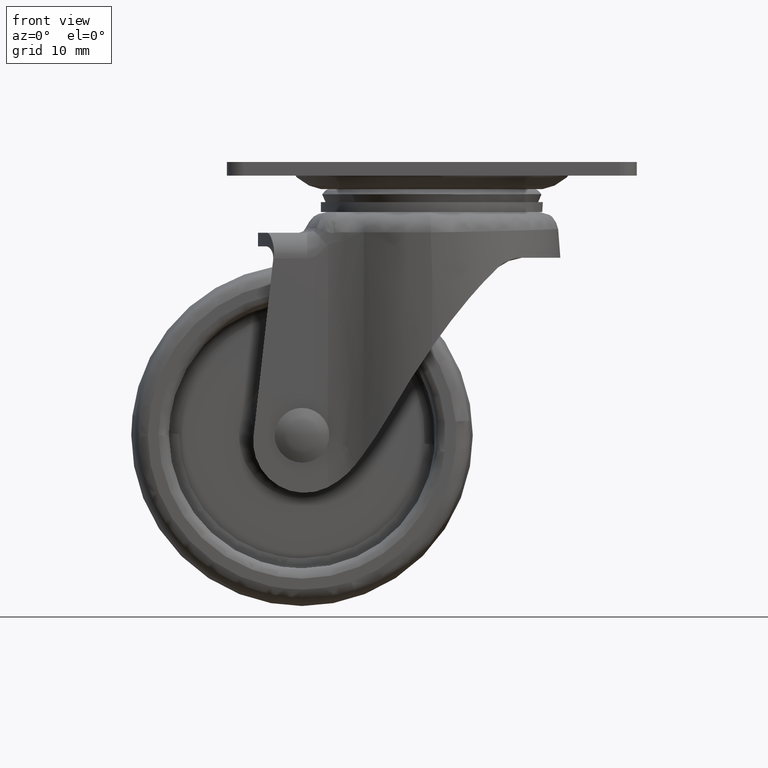
[diagram: clean part render]
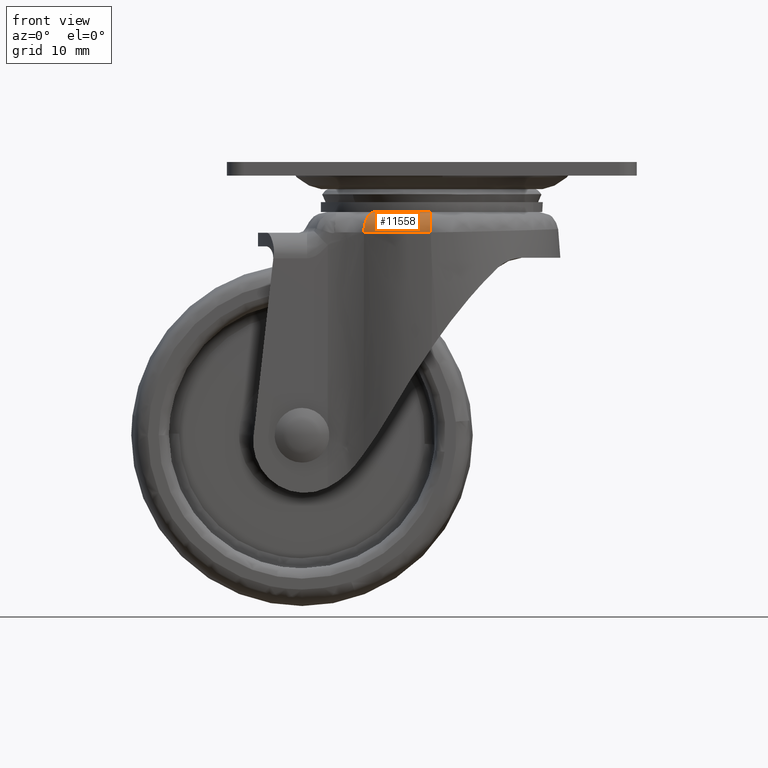
[diagram: same view with one face highlighted and labeled with its STEP entity id]
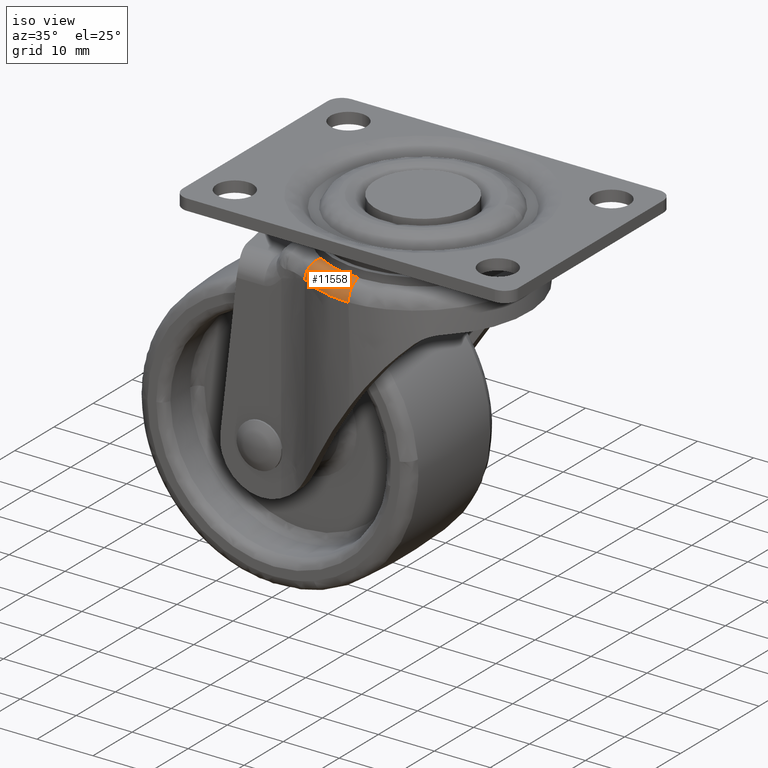
[diagram: same view with one face highlighted and labeled with its STEP entity id]
A machine part, front view. The second image highlights one B-rep face of the part: STEP entity #11558.
A second angle (iso view) of the same face is appended — the face is thin or edge-on in the first view.
In plain terms, the highlighted face is a freeform B-spline surface patch.
Its self-contained STEP definition (entity closure, byte-faithful):
#9485=CARTESIAN_POINT('',(-8.369213533288811,-13.460270502599659,-7.312300000000000));
#9486=VERTEX_POINT('',#9485);
#9500=CARTESIAN_POINT('',(-0.211368804639045,-15.848757446875849,-7.312300000000000));
#9501=VERTEX_POINT('',#9500);
#9502=CARTESIAN_POINT('',(-8.369213533288811,-13.460270502599659,-7.312300000000000));
#9503=CARTESIAN_POINT('',(-4.622674445435258,-15.789844113339997,-7.312300000000000));
#9504=CARTESIAN_POINT('',(-0.211368804639045,-15.848757446875849,-7.312300000000000));
#9512=(BOUNDED_CURVE()B_SPLINE_CURVE(2,(#9502,#9503,#9504),.UNSPECIFIED.,.F.,.U.)CURVE()GEOMETRIC_REPRESENTATION_ITEM()QUASI_UNIFORM_CURVE()RATIONAL_B_SPLINE_CURVE((1.0,0.963377945094410,1.0))REPRESENTATION_ITEM(''));
#9513=EDGE_CURVE('',#9486,#9501,#9512,.T.);
#11463=CARTESIAN_POINT('',(-9.953290479652640,-16.007955771230499,-10.312300000000000));
#11464=VERTEX_POINT('',#11463);
#11465=CARTESIAN_POINT('',(-9.953290479652637,-16.007955771230510,-10.312300000000000));
#11466=CARTESIAN_POINT('',(-9.953290479652637,-16.007955771230503,-7.312300000000000));
#11467=CARTESIAN_POINT('',(-8.369213533288811,-13.460270502599659,-7.312300000000000));
#11475=(BOUNDED_CURVE()B_SPLINE_CURVE(2,(#11465,#11466,#11467),.UNSPECIFIED.,.F.,.U.)CURVE()GEOMETRIC_REPRESENTATION_ITEM()QUASI_UNIFORM_CURVE()RATIONAL_B_SPLINE_CURVE((1.0,0.707106781186548,1.0))REPRESENTATION_ITEM(''));
#11476=EDGE_CURVE('',#11464,#9486,#11475,.T.);
#11509=CARTESIAN_POINT('',(-10.376411036276826,-15.728240278587132,-10.521472444295743));
#11510=CARTESIAN_POINT('',(-5.507472607195649,-18.940428767129223,-10.521472444295739));
#11511=CARTESIAN_POINT('',(0.324731981307811,-18.839900413193632,-10.521472444295741));
#11512=CARTESIAN_POINT('',(-10.508861203603439,-15.929004247431148,-7.080293131896187));
#11513=CARTESIAN_POINT('',(-5.577772948110320,-19.182194888675149,-7.080293131896187));
#11514=CARTESIAN_POINT('',(0.328877129498004,-19.080383335159681,-7.080293131896186));
#11515=CARTESIAN_POINT('',(-8.613803640330195,-13.056533149282791,-7.319522938318220));
#11516=CARTESIAN_POINT('',(-4.571936598938209,-15.723077196139235,-7.319522938318221));
#11517=CARTESIAN_POINT('',(0.269569583216519,-15.639625280199866,-7.319522938318218));
#11525=(BOUNDED_SURFACE()B_SPLINE_SURFACE(2,2,((#11509,#11512,#11515),(#11510,#11513,#11516),(#11511,#11514,#11517)),.UNSPECIFIED.,.F.,.F.,.U.)B_SPLINE_SURFACE_WITH_KNOTS((3,3),(3,3),(0.0,11.399286200392019),(0.0,5.467110668570027),.UNSPECIFIED.)GEOMETRIC_REPRESENTATION_ITEM()RATIONAL_B_SPLINE_SURFACE(((0.863274144442037,0.568077419532900,0.868082582462250),(0.824634716366299,0.542650749760832,0.829227932725775),(0.863213603317525,0.568037580455117,0.868021704123602)))REPRESENTATION_ITEM('')SURFACE());
#11526=CARTESIAN_POINT('',(-0.182438015682148,-18.849117192179499,-10.311116450192721));
#11527=VERTEX_POINT('',#11526);
#11528=CARTESIAN_POINT('',(-0.182438015682148,-18.849117192179499,-10.311116450192721));
#11529=CARTESIAN_POINT('',(-0.182441308971112,-18.848696138851981,-9.957782691820489));
#11530=CARTESIAN_POINT('',(-0.183059411722997,-18.784522454769771,-9.576882963991857));
#11531=CARTESIAN_POINT('',(-0.185876485251217,-18.492268347245972,-8.838659459573037));
#11532=CARTESIAN_POINT('',(-0.188084121270443,-18.263290017298381,-8.483767742940936));
#11533=CARTESIAN_POINT('',(-0.193733508154494,-17.677402273883040,-7.897925979719793));
#11534=CARTESIAN_POINT('',(-0.197156146682034,-17.322474967076118,-7.668960409096036));
#11535=CARTESIAN_POINT('',(-0.204279840289085,-16.583790078671061,-7.376626610187225));
#11536=CARTESIAN_POINT('',(-0.207958437365262,-16.202360840253942,-7.312320205914102));
#11537=CARTESIAN_POINT('',(-0.211368804639045,-15.848757446875849,-7.312300000000000));
#11538=B_SPLINE_CURVE_WITH_KNOTS('',3,(#11528,#11529,#11530,#11531,#11532,#11533,#11534,#11535,#11536,#11537),.UNSPECIFIED.,.F.,.U.,(4,2,2,2,4),(0.000039283010345,0.249760458865238,0.499760458865238,0.749760458865237,0.999721175854893),.UNSPECIFIED.);
#11539=EDGE_CURVE('',#11527,#9501,#11538,.T.);
#11540=ORIENTED_EDGE('',*,*,#11539,.T.);
#11541=ORIENTED_EDGE('',*,*,#9513,.F.);
#11542=ORIENTED_EDGE('',*,*,#11476,.F.);
#11543=CARTESIAN_POINT('',(-0.182438015682148,-18.849117192179499,-10.311116450192721));
#11544=CARTESIAN_POINT('',(-5.466069930335563,-18.797979606962450,-10.311708225096361));
#11545=CARTESIAN_POINT('',(-9.953290479652640,-16.007955771230499,-10.312300000000000));
#11553=(BOUNDED_CURVE()B_SPLINE_CURVE(2,(#11543,#11544,#11545),.UNSPECIFIED.,.F.,.U.)CURVE()GEOMETRIC_REPRESENTATION_ITEM()QUASI_UNIFORM_CURVE()RATIONAL_B_SPLINE_CURVE((1.0,0.962886001294777,1.0))REPRESENTATION_ITEM(''));
#11554=EDGE_CURVE('',#11527,#11464,#11553,.T.);
#11555=ORIENTED_EDGE('',*,*,#11554,.F.);
#11556=EDGE_LOOP('',(#11540,#11541,#11542,#11555));
#11557=FACE_OUTER_BOUND('',#11556,.T.);
#11558=ADVANCED_FACE('',(#11557),#11525,.T.);